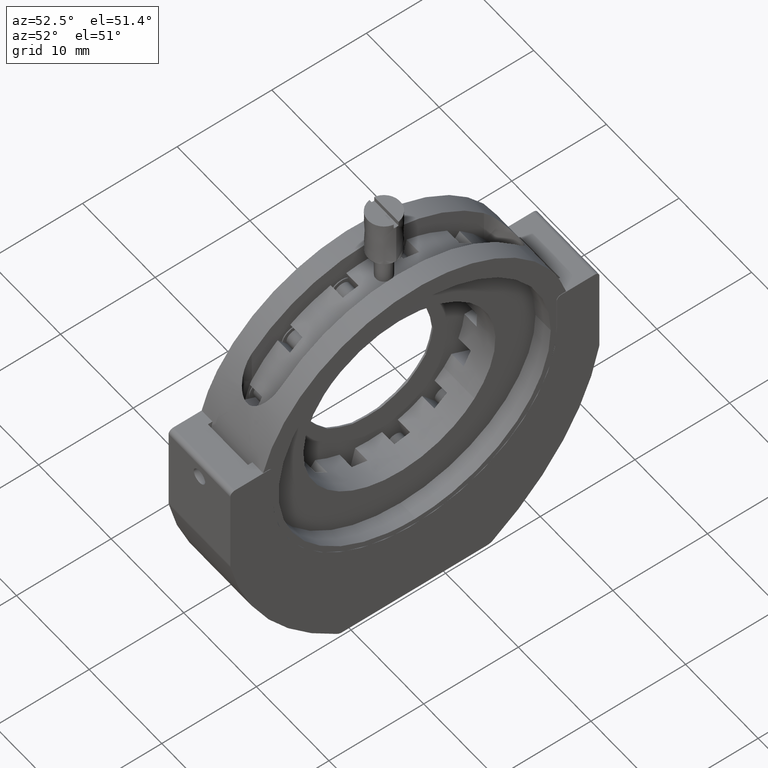
[diagram: clean part render]
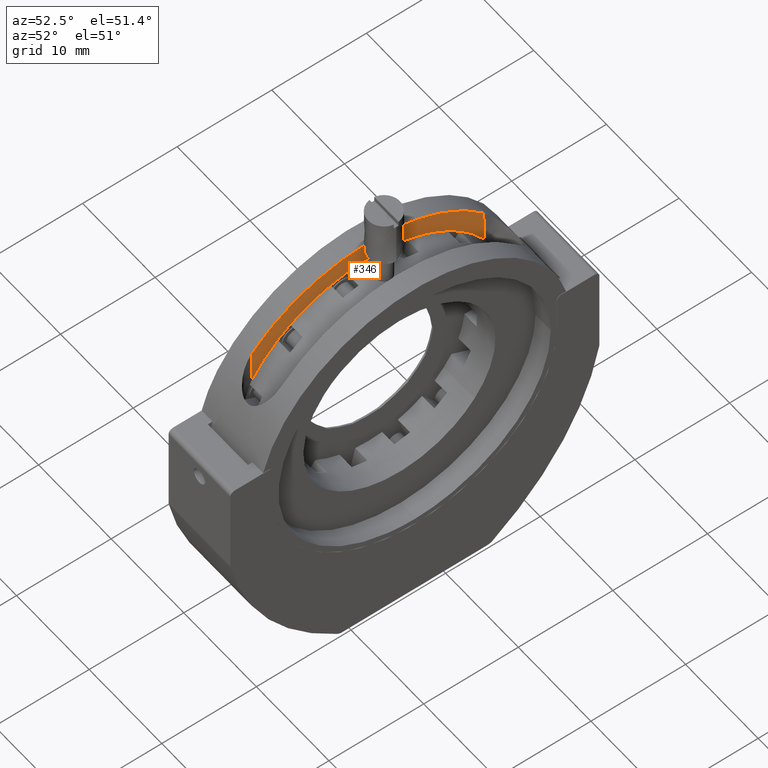
[diagram: same view with one face highlighted and labeled with its STEP entity id]
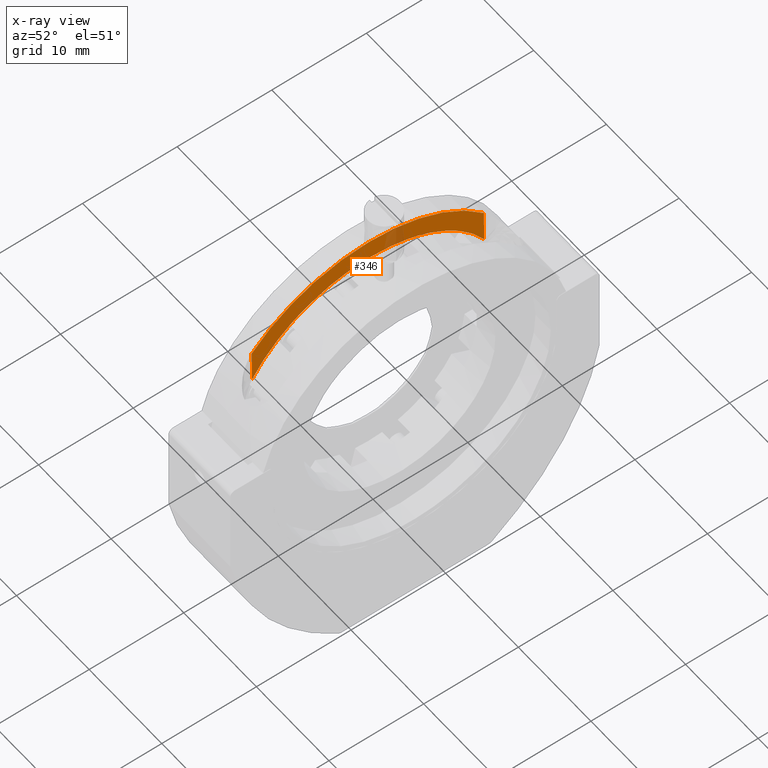
[diagram: x-ray of the same camera — body ghosted, the highlighted face saturated]
A machine part, auxiliary view. The second image highlights one B-rep face of the part: STEP entity #346.
The next image is the same camera in x-ray: the body ghosted, the highlighted face saturated — about 7% of this face is hidden behind the body in this view.
In plain terms, the highlighted planar face has unit normal (1, 0, 0).
Its self-contained STEP definition (entity closure, byte-faithful):
#346=ADVANCED_FACE('',(#668),#5803,.T.);
#668=FACE_OUTER_BOUND('',#1017,.T.);
#1017=EDGE_LOOP('',(#2697,#2698,#2699,#2700,#2701,#2702,#2703,#2704,#2705,
#2706,#2707,#2708));
#2697=ORIENTED_EDGE('',*,*,#3018,.F.);
#2698=ORIENTED_EDGE('',*,*,#3788,.F.);
#2699=ORIENTED_EDGE('',*,*,#3793,.F.);
#2700=ORIENTED_EDGE('',*,*,#3903,.F.);
#2701=ORIENTED_EDGE('',*,*,#3792,.F.);
#2702=ORIENTED_EDGE('',*,*,#3905,.F.);
#2703=ORIENTED_EDGE('',*,*,#3791,.F.);
#2704=ORIENTED_EDGE('',*,*,#3907,.F.);
#2705=ORIENTED_EDGE('',*,*,#3790,.F.);
#2706=ORIENTED_EDGE('',*,*,#3909,.F.);
#2707=ORIENTED_EDGE('',*,*,#3789,.F.);
#2708=ORIENTED_EDGE('',*,*,#3787,.F.);
#3018=EDGE_CURVE('',#5040,#5041,#3963,.T.);
#3787=EDGE_CURVE('',#5041,#5464,#4891,.T.);
#3788=EDGE_CURVE('',#5465,#5040,#4892,.T.);
#3789=EDGE_CURVE('',#5464,#5244,#4284,.T.);
#3790=EDGE_CURVE('',#5448,#5442,#4285,.T.);
#3791=EDGE_CURVE('',#5215,#5216,#4286,.T.);
#3792=EDGE_CURVE('',#5193,#5194,#4287,.T.);
#3793=EDGE_CURVE('',#5092,#5465,#4288,.T.);
#3903=EDGE_CURVE('',#5194,#5092,#4364,.T.);
#3905=EDGE_CURVE('',#5216,#5193,#4366,.T.);
#3907=EDGE_CURVE('',#5442,#5215,#4368,.T.);
#3909=EDGE_CURVE('',#5244,#5448,#4370,.T.);
#3963=(
BOUNDED_CURVE()
B_SPLINE_CURVE(2,(#9883,#9884,#9885,#9886,#9887),.UNSPECIFIED.,.F.,.F.)
B_SPLINE_CURVE_WITH_KNOTS((3,2,3),(0.,13.8339829053415,27.6679658106831),
 .UNSPECIFIED.)
CURVE()
GEOMETRIC_REPRESENTATION_ITEM()
RATIONAL_B_SPLINE_CURVE((1.,0.913410133544442,1.,0.913410133544442,1.))
REPRESENTATION_ITEM('')
);
#4284=(
BOUNDED_CURVE()
B_SPLINE_CURVE(2,(#12088,#12089,#12090),.UNSPECIFIED.,.F.,.F.)
B_SPLINE_CURVE_WITH_KNOTS((3,3),(0.,4.11037523595236),.UNSPECIFIED.)
CURVE()
GEOMETRIC_REPRESENTATION_ITEM()
RATIONAL_B_SPLINE_CURVE((1.,0.99009487970754,1.))
REPRESENTATION_ITEM('')
);
#4285=(
BOUNDED_CURVE()
B_SPLINE_CURVE(2,(#12091,#12092,#12093),.UNSPECIFIED.,.F.,.F.)
B_SPLINE_CURVE_WITH_KNOTS((3,3),(5.77922928180438,10.4518618653675),
 .UNSPECIFIED.)
CURVE()
GEOMETRIC_REPRESENTATION_ITEM()
RATIONAL_B_SPLINE_CURVE((1.,0.986329190757633,1.))
REPRESENTATION_ITEM('')
);
#4286=(
BOUNDED_CURVE()
B_SPLINE_CURVE(2,(#12094,#12095,#12096,#12097,#12098),.UNSPECIFIED.,.F.,
 .F.)
B_SPLINE_CURVE_WITH_KNOTS((3,2,3),(12.1412435052271,14.6952365510216,17.0228389868437),
 .UNSPECIFIED.)
CURVE()
GEOMETRIC_REPRESENTATION_ITEM()
RATIONAL_B_SPLINE_CURVE((1.,0.996246097680204,1.,0.996891589980356,1.))
REPRESENTATION_ITEM('')
);
#4287=(
BOUNDED_CURVE()
B_SPLINE_CURVE(2,(#12099,#12100,#12101),.UNSPECIFIED.,.F.,.F.)
B_SPLINE_CURVE_WITH_KNOTS((3,3),(18.7160318603266,23.3909430988819),
 .UNSPECIFIED.)
CURVE()
GEOMETRIC_REPRESENTATION_ITEM()
RATIONAL_B_SPLINE_CURVE((1.,0.986329190757633,1.))
REPRESENTATION_ITEM('')
);
#4288=(
BOUNDED_CURVE()
B_SPLINE_CURVE(2,(#12102,#12103,#12104),.UNSPECIFIED.,.F.,.F.)
B_SPLINE_CURVE_WITH_KNOTS((3,3),(25.0576759575225,29.3904731020432),
 .UNSPECIFIED.)
CURVE()
GEOMETRIC_REPRESENTATION_ITEM()
RATIONAL_B_SPLINE_CURVE((1.,0.988968547379444,1.))
REPRESENTATION_ITEM('')
);
#4364=(
BOUNDED_CURVE()
B_SPLINE_CURVE(2,(#12490,#12491,#12492),.UNSPECIFIED.,.F.,.F.)
B_SPLINE_CURVE_WITH_KNOTS((3,3),(23.4199870141413,25.1132721852343),
 .UNSPECIFIED.)
CURVE()
GEOMETRIC_REPRESENTATION_ITEM()
RATIONAL_B_SPLINE_CURVE((1.,0.998268396969244,1.))
REPRESENTATION_ITEM('')
);
#4366=(
BOUNDED_CURVE()
B_SPLINE_CURVE(2,(#12496,#12497,#12498),.UNSPECIFIED.,.F.,.F.)
B_SPLINE_CURVE_WITH_KNOTS((3,3),(16.9641867259952,18.6574718970882),
 .UNSPECIFIED.)
CURVE()
GEOMETRIC_REPRESENTATION_ITEM()
RATIONAL_B_SPLINE_CURVE((1.,0.998268396969244,1.))
REPRESENTATION_ITEM('')
);
#4368=(
BOUNDED_CURVE()
B_SPLINE_CURVE(2,(#12502,#12503,#12504),.UNSPECIFIED.,.F.,.F.)
B_SPLINE_CURVE_WITH_KNOTS((3,3),(10.5083864378492,12.2016716089421),
 .UNSPECIFIED.)
CURVE()
GEOMETRIC_REPRESENTATION_ITEM()
RATIONAL_B_SPLINE_CURVE((1.,0.998268396969244,1.))
REPRESENTATION_ITEM('')
);
#4370=(
BOUNDED_CURVE()
B_SPLINE_CURVE(2,(#12508,#12509,#12510),.UNSPECIFIED.,.F.,.F.)
B_SPLINE_CURVE_WITH_KNOTS((3,3),(4.05258614970314,5.74587132079611),
 .UNSPECIFIED.)
CURVE()
GEOMETRIC_REPRESENTATION_ITEM()
RATIONAL_B_SPLINE_CURVE((1.,0.998268396969244,1.))
REPRESENTATION_ITEM('')
);
#4891=B_SPLINE_CURVE_WITH_KNOTS('',1,(#12084,#12085),.UNSPECIFIED.,.F.,
 .F.,(2,2),(0.,3.5236258841012),.UNSPECIFIED.);
#4892=B_SPLINE_CURVE_WITH_KNOTS('',1,(#12086,#12087),.UNSPECIFIED.,.F.,
 .F.,(2,2),(0.,3.5236258841012),.UNSPECIFIED.);
#5040=VERTEX_POINT('',#9113);
#5041=VERTEX_POINT('',#9114);
#5092=VERTEX_POINT('',#9165);
#5193=VERTEX_POINT('',#9266);
#5194=VERTEX_POINT('',#9267);
#5215=VERTEX_POINT('',#9288);
#5216=VERTEX_POINT('',#9289);
#5244=VERTEX_POINT('',#9317);
#5442=VERTEX_POINT('',#9515);
#5448=VERTEX_POINT('',#9521);
#5464=VERTEX_POINT('',#9537);
#5465=VERTEX_POINT('',#9538);
#5803=PLANE('',#5996);
#5996=AXIS2_PLACEMENT_3D('',#8600,#6172,$);
#6172=DIRECTION('',(1.,0.,0.));
#8600=CARTESIAN_POINT('',(13.9423076923077,1.48094534064277,20.1138898278456));
#9113=CARTESIAN_POINT('',(13.9423076923077,4.14500821754125,13.4596339121215));
#9114=CARTESIAN_POINT('',(13.9423076923077,28.6827218702852,13.6512151494615));
#9165=CARTESIAN_POINT('',(13.9576923076923,6.88531944866004,13.2225670739219));
#9266=CARTESIAN_POINT('',(13.9576923076923,12.4797255975301,16.3346565657327));
#9267=CARTESIAN_POINT('',(13.9576923076923,8.208418880529,14.2777036616829));
#9288=CARTESIAN_POINT('',(13.9576923076923,18.8703963972392,16.7112304539664));
#9289=CARTESIAN_POINT('',(13.9576923076923,14.1296036027609,16.7112304539665));
#9317=CARTESIAN_POINT('',(13.9576923076923,26.11468055134,13.2225670739219));
#9515=CARTESIAN_POINT('',(13.9576923076923,20.5202744024699,16.3346565657327));
#9521=CARTESIAN_POINT('',(13.9576923076923,24.791581119471,14.2777036616829));
#9537=CARTESIAN_POINT('',(13.9423076923077,28.7102321771453,10.1276966587872));
#9538=CARTESIAN_POINT('',(13.9423076923077,4.17251852440139,9.93611542144715));
#9883=CARTESIAN_POINT('',(13.9423076923077,4.14500821754125,13.4596339121215));
#9884=CARTESIAN_POINT('',(13.9423076923077,9.01855253590675,18.9653549789503));
#9885=CARTESIAN_POINT('',(13.9423076923077,16.3711781335128,19.0227615136268));
#9886=CARTESIAN_POINT('',(13.9423076923077,23.7238037311188,19.0801680483032));
#9887=CARTESIAN_POINT('',(13.9423076923077,28.6827218702852,13.6512151494615));
#12084=CARTESIAN_POINT('',(13.9423076923077,28.6827218702852,13.6512151494615));
#12085=CARTESIAN_POINT('',(13.9423076923077,28.7102321771453,10.1276966587872));
#12086=CARTESIAN_POINT('',(13.9423076923077,4.17251852440139,9.93611542144715));
#12087=CARTESIAN_POINT('',(13.9423076923077,4.14500821754125,13.4596339121215));
#12088=CARTESIAN_POINT('',(13.9423076923077,28.7102321771453,10.1276966587872));
#12089=CARTESIAN_POINT('',(13.95,27.6318896102225,11.8591622915295));
#12090=CARTESIAN_POINT('',(13.9576923076923,26.11468055134,13.2225670739219));
#12091=CARTESIAN_POINT('',(13.9576923076923,24.791581119471,14.2777036616829));
#12092=CARTESIAN_POINT('',(13.9576923076923,22.8277562575744,15.6629856634466));
#12093=CARTESIAN_POINT('',(13.9576923076923,20.5202744024699,16.3346565657327));
#12094=CARTESIAN_POINT('',(13.9576923076923,18.8703963972392,16.7112304539664));
#12095=CARTESIAN_POINT('',(13.9576923076923,17.6375696980019,16.9171999323011));
#12096=CARTESIAN_POINT('',(13.9576923076923,16.3876937574214,16.9074413711488));
#12097=CARTESIAN_POINT('',(13.9576923076923,15.2508952900145,16.8985656763684));
#12098=CARTESIAN_POINT('',(13.9576923076923,14.1296036027609,16.7112304539664));
#12099=CARTESIAN_POINT('',(13.9576923076923,12.4797255975301,16.3346565657327));
#12100=CARTESIAN_POINT('',(13.9576923076923,10.1722437424256,15.6629856634466));
#12101=CARTESIAN_POINT('',(13.9576923076923,8.208418880529,14.2777036616829));
#12102=CARTESIAN_POINT('',(13.9576923076923,6.88531944866004,13.2225670739219));
#12103=CARTESIAN_POINT('',(13.95,5.28280002043261,11.7825001038952));
#12104=CARTESIAN_POINT('',(13.9423076923077,4.17251852440139,9.93611542144715));
#12490=CARTESIAN_POINT('',(13.9576923076923,8.208418880529,14.2777036616829));
#12491=CARTESIAN_POINT('',(13.9576923076923,7.51578190474936,13.7891175586548));
#12492=CARTESIAN_POINT('',(13.9576923076923,6.88531944866004,13.2225670739219));
#12496=CARTESIAN_POINT('',(13.9576923076923,14.1296036027609,16.7112304539665));
#12497=CARTESIAN_POINT('',(13.9576923076923,13.2935696855627,16.5715535067508));
#12498=CARTESIAN_POINT('',(13.9576923076923,12.4797255975301,16.3346565657327));
#12502=CARTESIAN_POINT('',(13.9576923076923,20.5202744024699,16.3346565657327));
#12503=CARTESIAN_POINT('',(13.9576923076923,19.7064303144374,16.5715535067508));
#12504=CARTESIAN_POINT('',(13.9576923076923,18.8703963972392,16.7112304539664));
#12508=CARTESIAN_POINT('',(13.9576923076923,26.11468055134,13.2225670739219));
#12509=CARTESIAN_POINT('',(13.9576923076923,25.4842180952507,13.7891175586548));
#12510=CARTESIAN_POINT('',(13.9576923076923,24.791581119471,14.2777036616829));